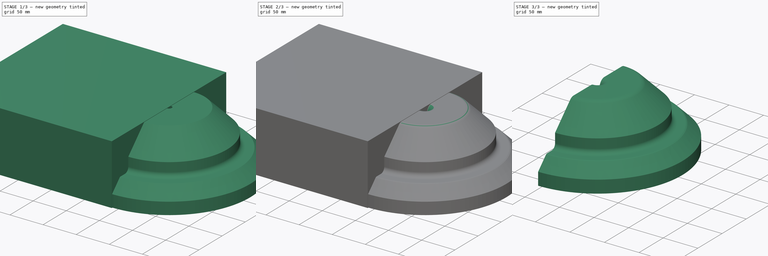
[diagram: build sequence overview — one tinted view per stage of 3, left to right]
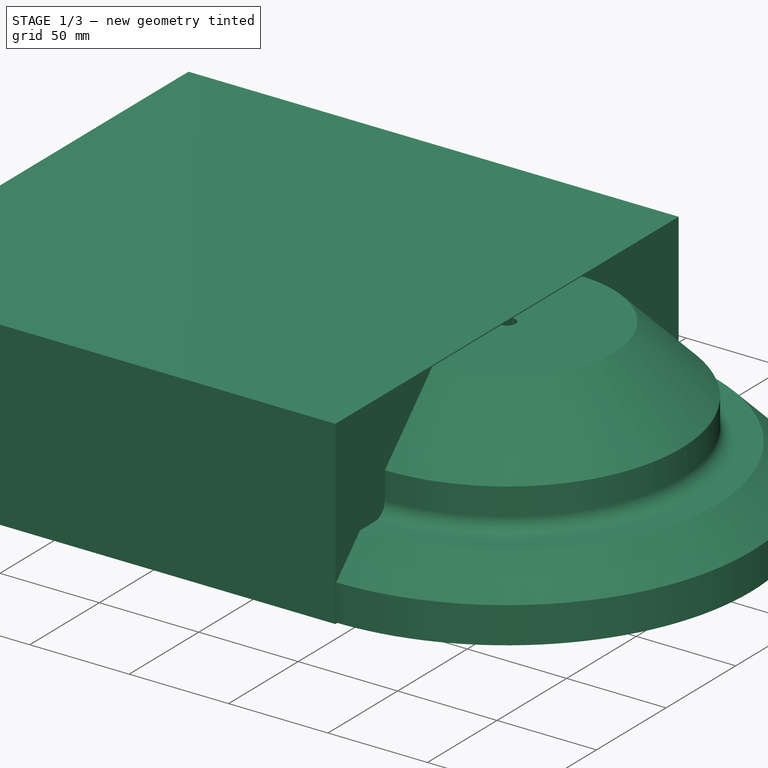
[diagram: stage 1 of 3 — iso view after this stage's code; geometry added in this stage tinted green]
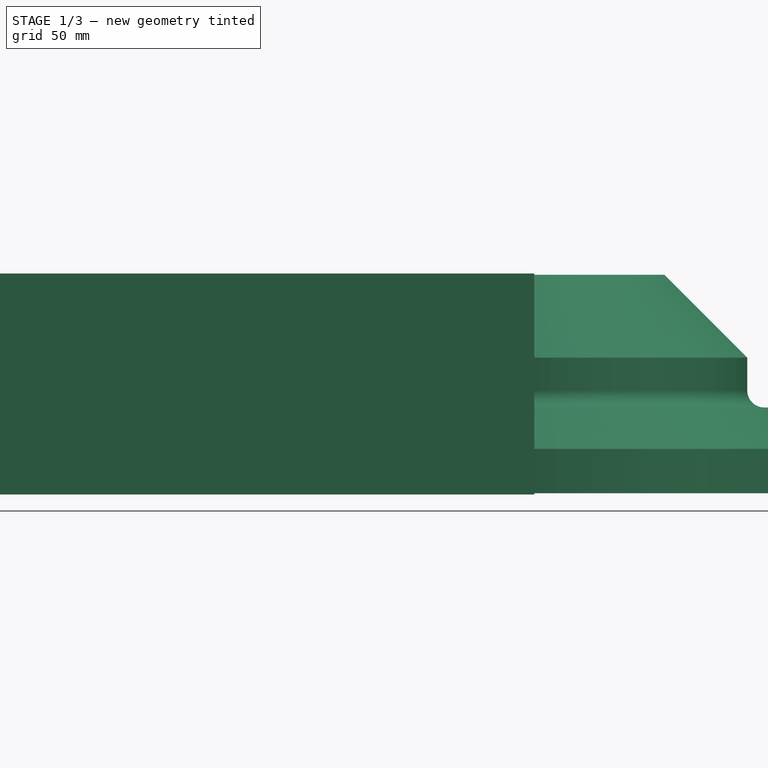
[diagram: stage 1 of 3 — front view after this stage's code; geometry added in this stage tinted green]
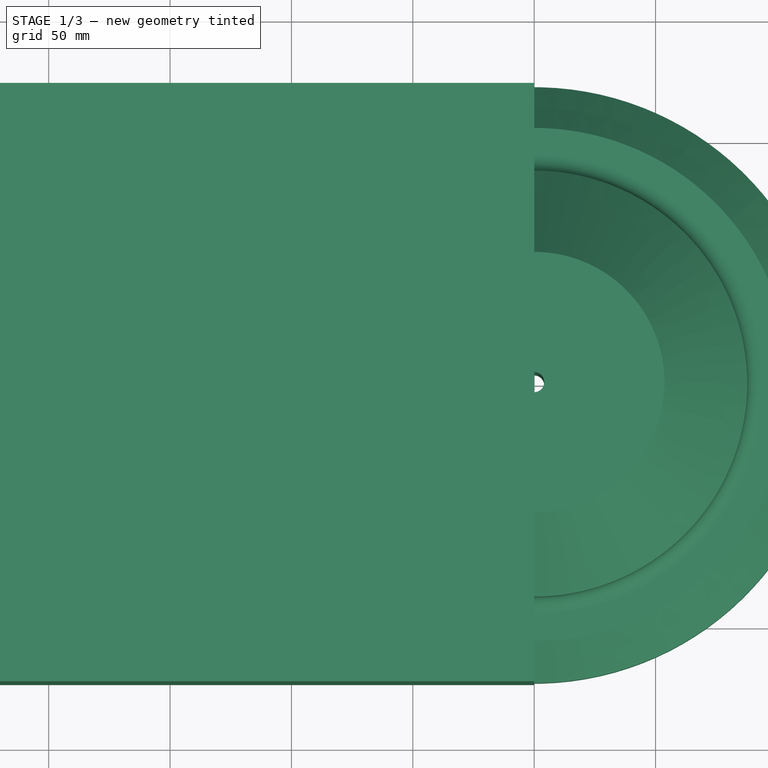
[diagram: stage 1 of 3 — top view after this stage's code; geometry added in this stage tinted green]
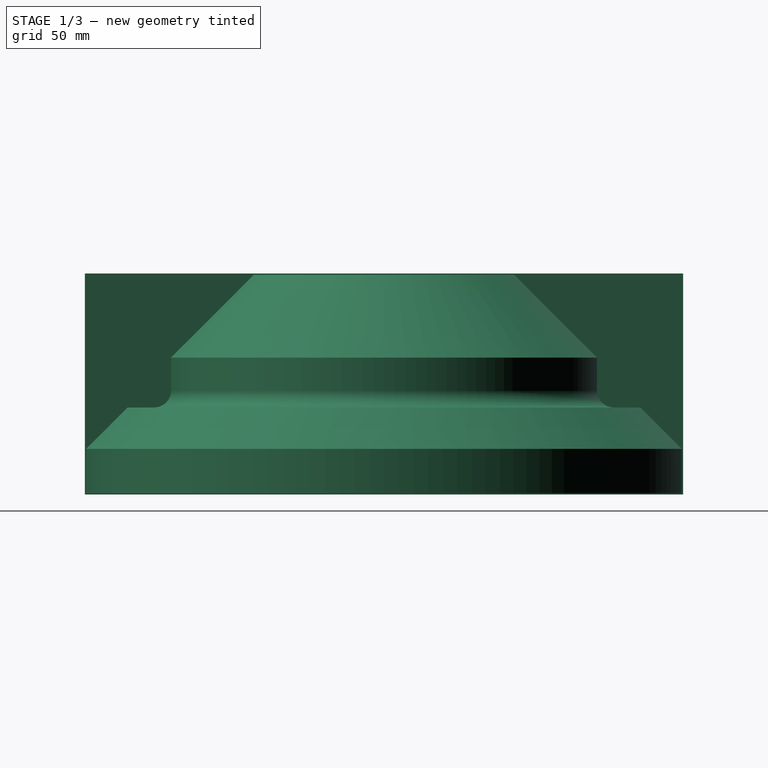
[diagram: stage 1 of 3 — right view after this stage's code; geometry added in this stage tinted green]
FCSTD DOCUMENT  (FreeCAD 0.21R33771 (Git))
Label: test3
License: All rights reserved
LicenseURL: http://en.wikipedia.org/wiki/All_rights_reserved
objects: Sketcher::SketchObject×1, PartDesign::Revolution×1, PartDesign::Chamfer×1, PartDesign::Fillet×1, PartDesign::Body×1, App::Link×1, Part::Compound×1, Part::Box×1, Part::Cut×1
note: 11 computed .brp shape members not serialized (recipe doc carries the construction recipe); baked Part::Feature solids carry a one-line shape summary decoded from their .brp

FEATURE [Sketcher::SketchObject] Sketch
  FullyConstrained = false
  MapMode = 5
  Placement = pos=(0,0,0) rot=(1,0,0;1.5708rad)
  Support = -> [XZ_Plane]
  sketch-geometry (12):
    g0: LineSegment StartX=4.13628 StartY=100 StartZ=0 EndX=53.6435 EndY=100 EndZ=0
    g1: LineSegment StartX=53.6435 StartY=100 StartZ=0 EndX=87.7591 EndY=65.8844 EndZ=0
    g2: LineSegment StartX=87.7591 StartY=65.8844 StartZ=0 EndX=87.7591 EndY=52.3427 EndZ=0
    g3: LineSegment StartX=94.7591 StartY=45.3427 StartZ=0 EndX=105.667 EndY=45.3427 EndZ=0
    g4: LineSegment StartX=105.667 StartY=45.3427 StartZ=0 EndX=122.743 EndY=28.2669 EndZ=0
    g5: LineSegment StartX=122.743 StartY=28.2669 StartZ=0 EndX=122.743 EndY=10 EndZ=0
    g6: LineSegment StartX=122.743 StartY=10 StartZ=0 EndX=12.1363 EndY=10 EndZ=0
    g7: LineSegment StartX=4.13628 StartY=18 StartZ=0 EndX=4.13628 EndY=100 EndZ=0
    g8: ArcOfCircle CenterX=12.1363 CenterY=18 CenterZ=0 NormalX=0 NormalY=0 NormalZ=1 AngleXU=0 Radius=8 StartAngle=3.14159 EndAngle=4.71239
    g9: GeomPoint X=4.13628 Y=10 Z=0
    g10: ArcOfCircle CenterX=94.7591 CenterY=52.3427 CenterZ=0 NormalX=0 NormalY=0 NormalZ=1 AngleXU=0 Radius=7 StartAngle=3.14159 EndAngle=4.71239
    g11: GeomPoint X=87.7591 Y=45.3427 Z=0
  constraints (26):
    c: Horizontal(g0)
    c: Coincident(g0,g1)
    c: Coincident(g1,g2)
    c: Vertical(g2)
    c: Horizontal(g3)
    c: Coincident(g3,g4)
    c: Coincident(g4,g5)
    c: Vertical(g5)
    c: Coincident(g5,g6)
    c: Horizontal(g6)
    c: Coincident(g7,g0)
    c: Vertical(g7)
    c: Distance(g-1,g6) = 10
    c: Distance(g-1,g0) = 100
    c: Angle(g0,g1) = 2.35619
    c: Angle(g3,g4) = 2.35619
    c: PointOnObject(g9,g7)
    c: PointOnObject(g9,g6)
    c: Tangent(g7,g8) = 1.5708
    c: Tangent(g6,g8) = 1.5708
    c: Radius(g8) = 8
    c: PointOnObject(g11,g2)
    c: PointOnObject(g11,g3)
    c: Tangent(g2,g10) = -1.5708
    c: Tangent(g3,g10) = -1.5708
    c: Radius(g10) = 7
FEATURE [PartDesign::Revolution] Revolution
  Angle = 360
  Axis = (0,-2e-16,1)
  Base = (0,0,0)
  Placement = pos=(0,0,0) rot=(1,0,0;1.5708rad)
  Profile = -> Sketch
  ReferenceAxis = -> Sketch [V_Axis]
  Reversed = true
  expr: Angle = 360
FEATURE [Part::Box] SectionCutBoxX
  AttacherType = Attacher::AttachEngine3D
  Height = 91
  Length = 246.485
  Placement = pos=(-246.485,-123.243,9.5) rot=(0,0,1;0rad)
  Width = 246.485
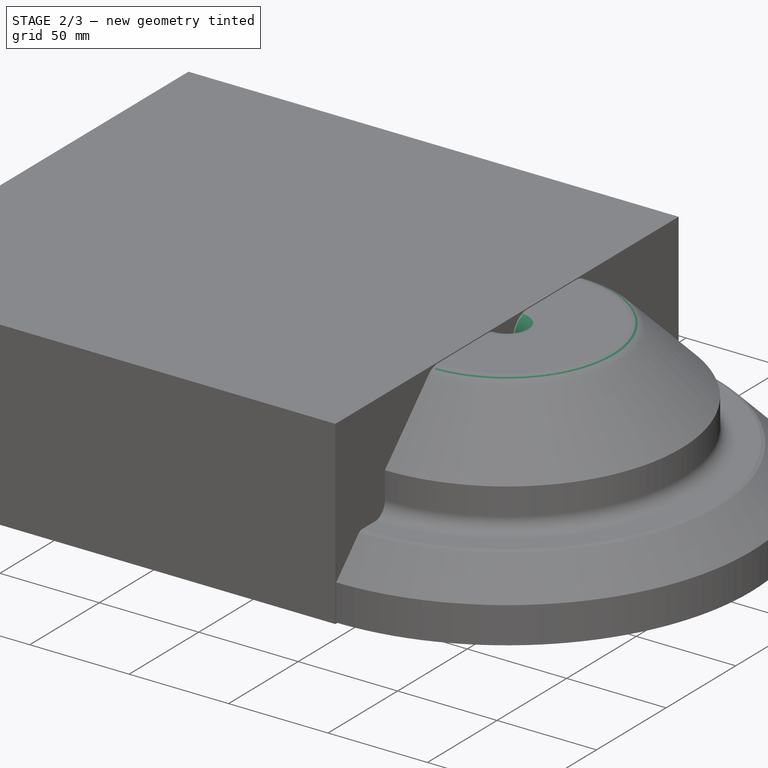
[diagram: stage 2 of 3 — iso view after this stage's code; geometry added in this stage tinted green]
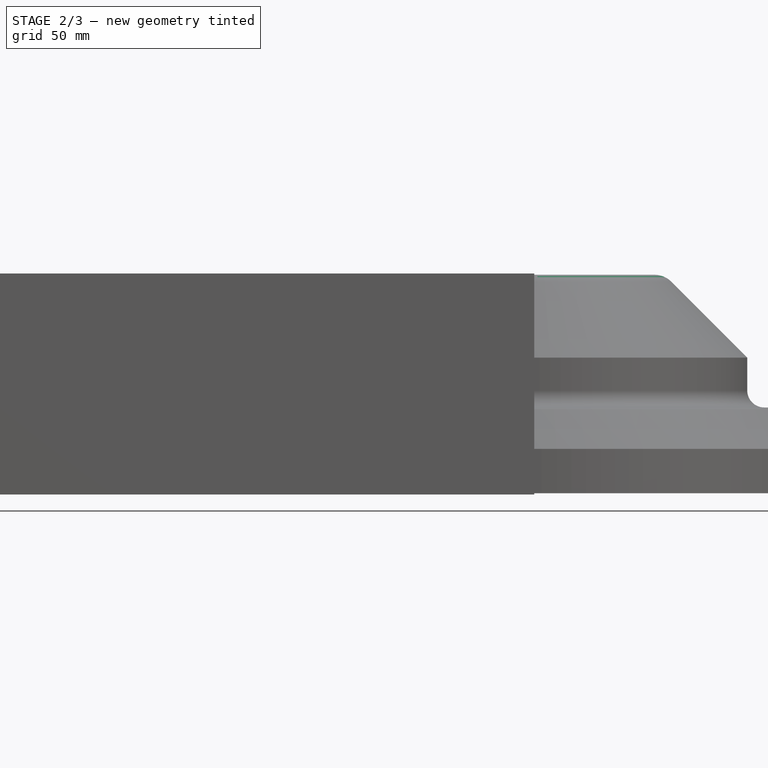
[diagram: stage 2 of 3 — front view after this stage's code; geometry added in this stage tinted green]
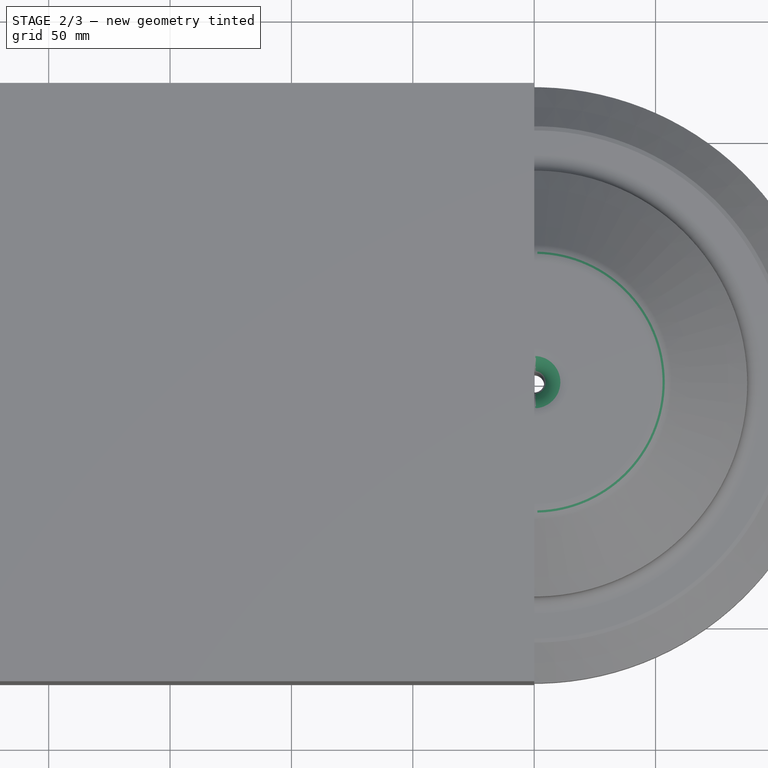
[diagram: stage 2 of 3 — top view after this stage's code; geometry added in this stage tinted green]
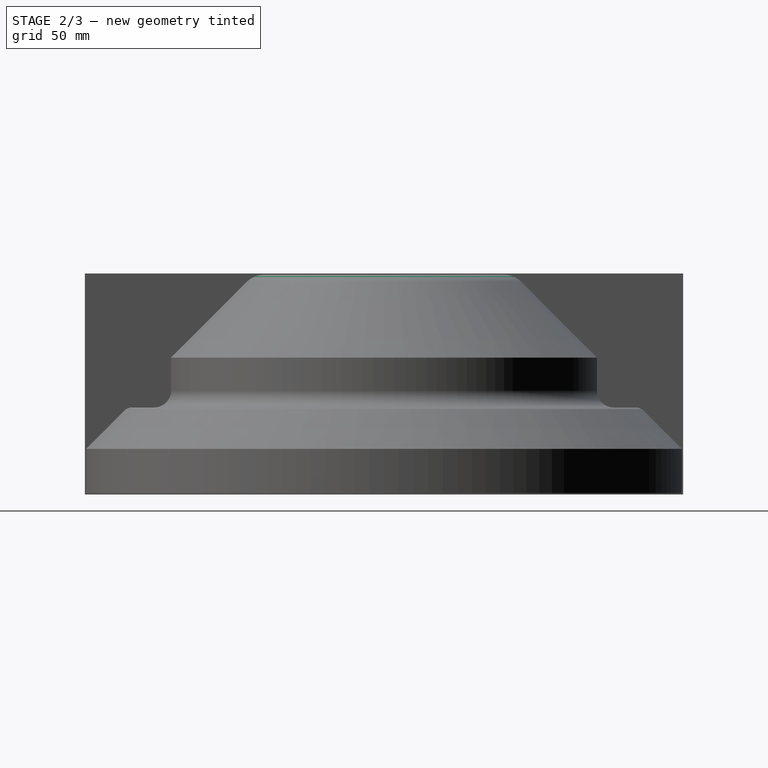
[diagram: stage 2 of 3 — right view after this stage's code; geometry added in this stage tinted green]
FEATURE [PartDesign::Chamfer] Chamfer
  Angle = 45
  Base = -> Revolution [Face6]
  BaseFeature = -> Revolution
  ChamferType = 0
  FlipDirection = false
  Placement = pos=(0,0,0) rot=(1,0,0;1.5708rad)
  Size = 1
  Size2 = 1
  SupportTransform = false
  UseAllEdges = false
FEATURE [PartDesign::Fillet] Fillet
  Base = -> Chamfer [Face9]
  BaseFeature = -> Chamfer
  Placement = pos=(0,0,0) rot=(1,0,0;1.5708rad)
  Radius = 10
  SupportTransform = false
  UseAllEdges = false
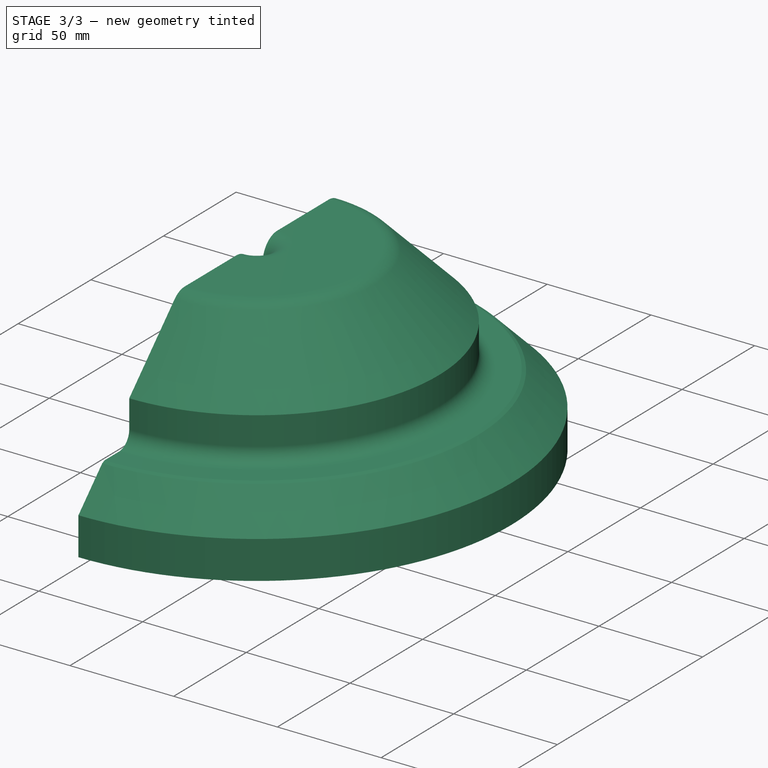
[diagram: stage 3 of 3 — iso view after this stage's code; geometry added in this stage tinted green]
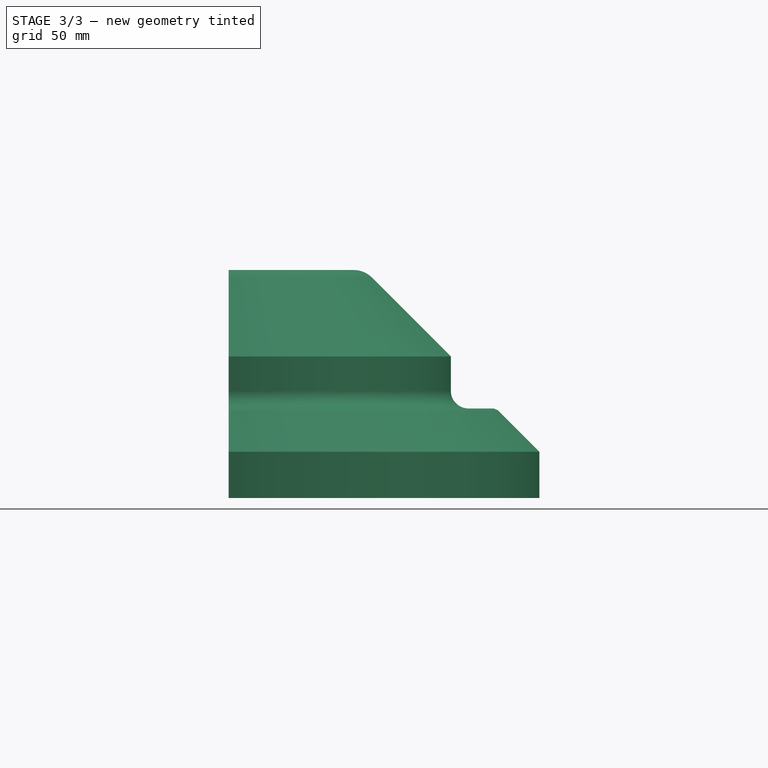
[diagram: stage 3 of 3 — front view after this stage's code; geometry added in this stage tinted green]
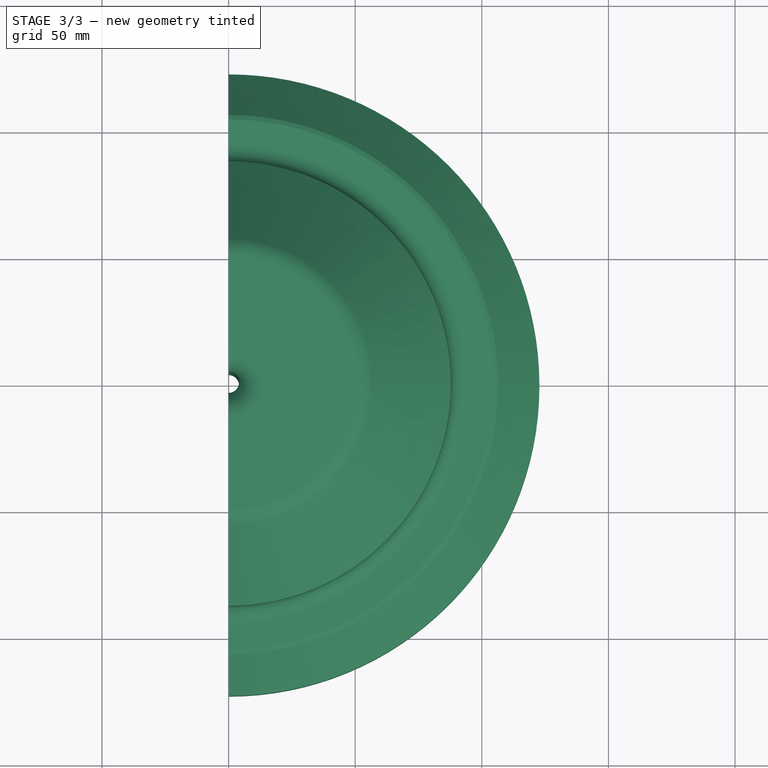
[diagram: stage 3 of 3 — top view after this stage's code; geometry added in this stage tinted green]
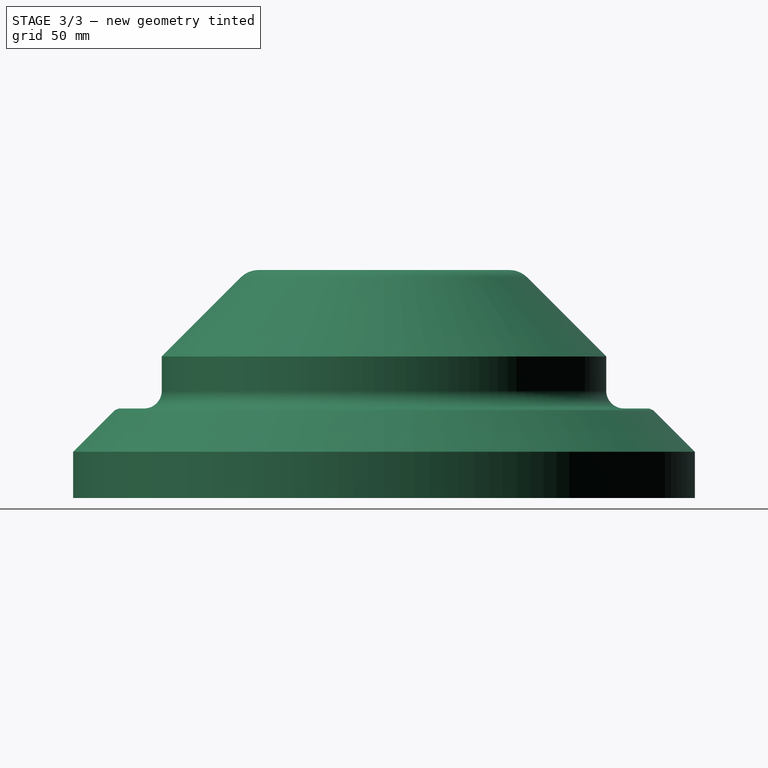
[diagram: stage 3 of 3 — right view after this stage's code; geometry added in this stage tinted green]
FEATURE [PartDesign::Body] Body
  Group = -> [Sketch,Revolution,Chamfer,Fillet]
  Origin = -> Origin
  Tip = -> Fillet
FEATURE [App::Link] Body_CutLink
  LinkTransform = true
  LinkedObject = -> Body
FEATURE [Part::Compound] SectionCutCompound
  Links = -> [Body_CutLink]
FEATURE [Part::Cut] SectionCutX
  Base = -> SectionCutCompound
  Tool = -> SectionCutBoxX
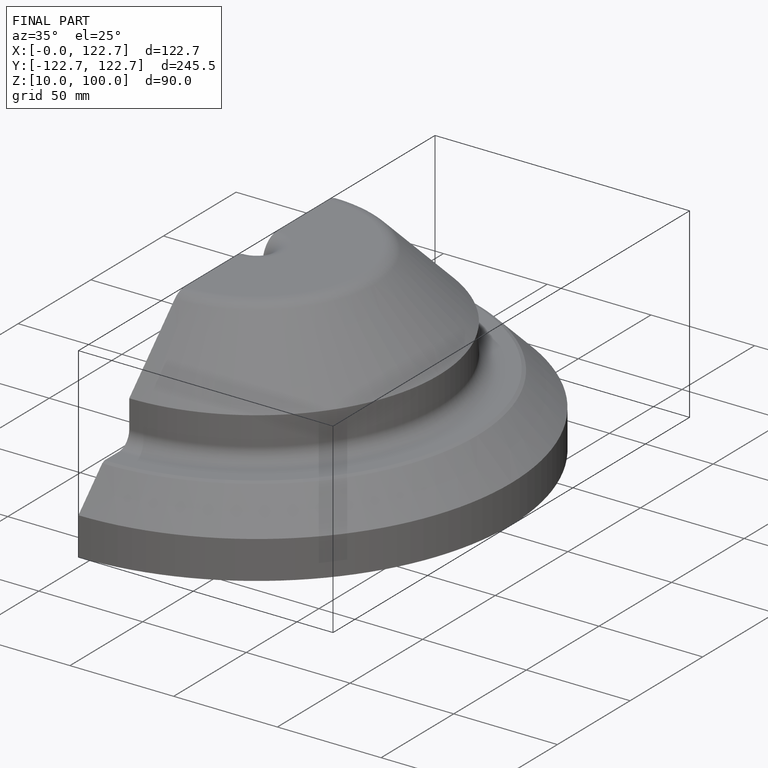
[diagram: finished part — iso view with bounding-box wireframe]
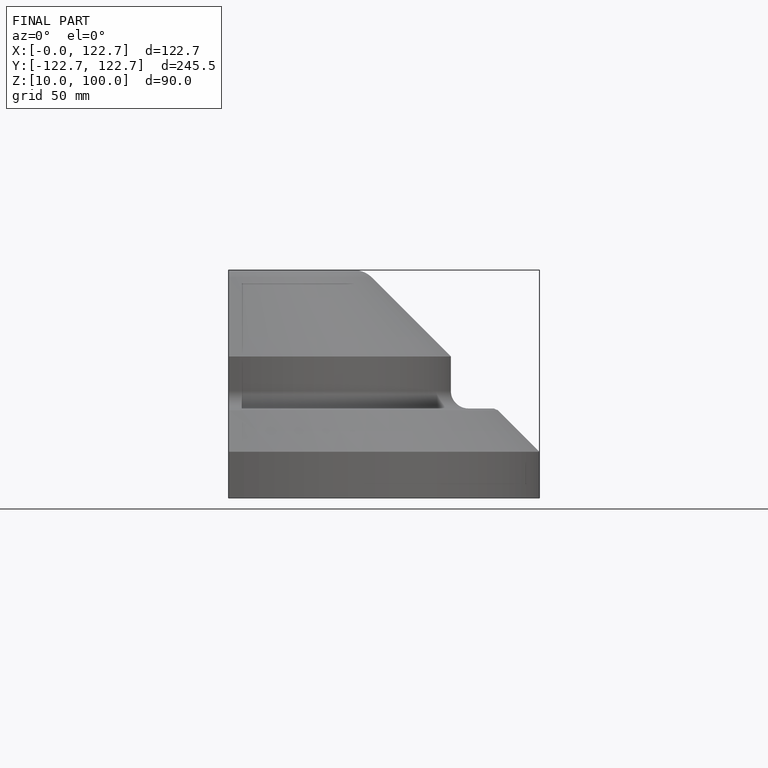
[diagram: finished part — front view with bounding-box wireframe]
